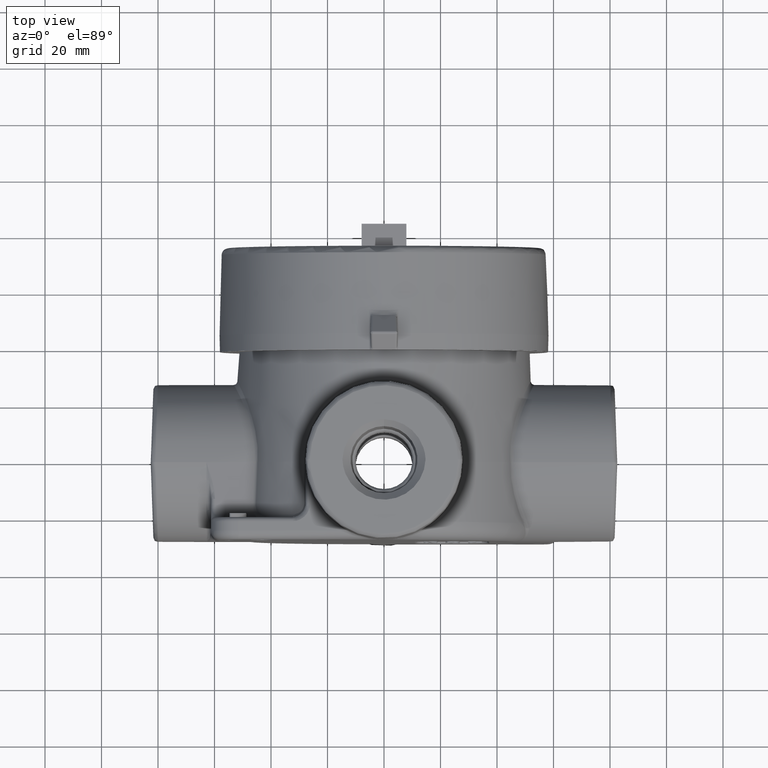
[diagram: clean part render]
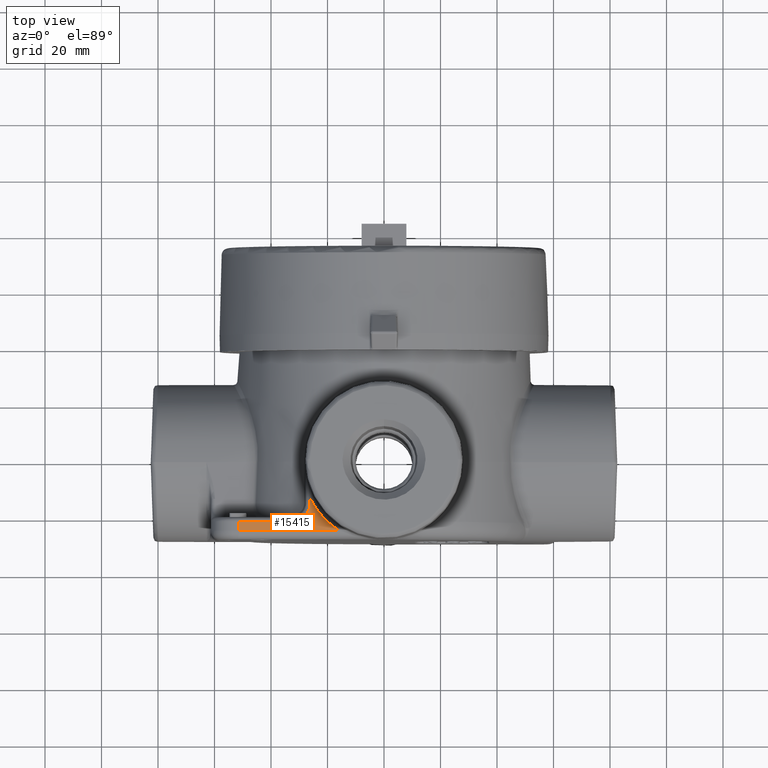
[diagram: same view with one face highlighted and labeled with its STEP entity id]
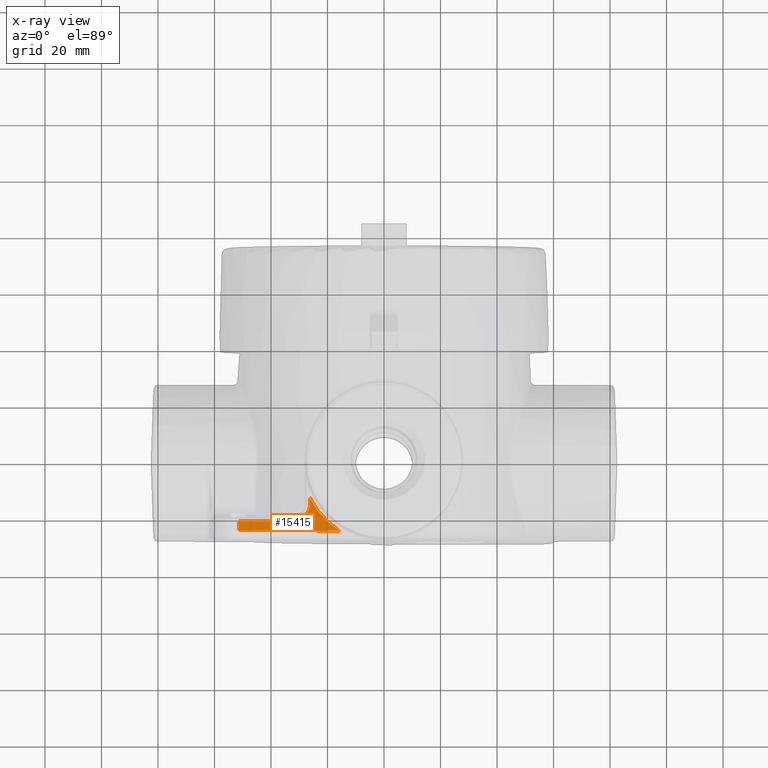
[diagram: x-ray of the same camera — body ghosted, the highlighted face saturated]
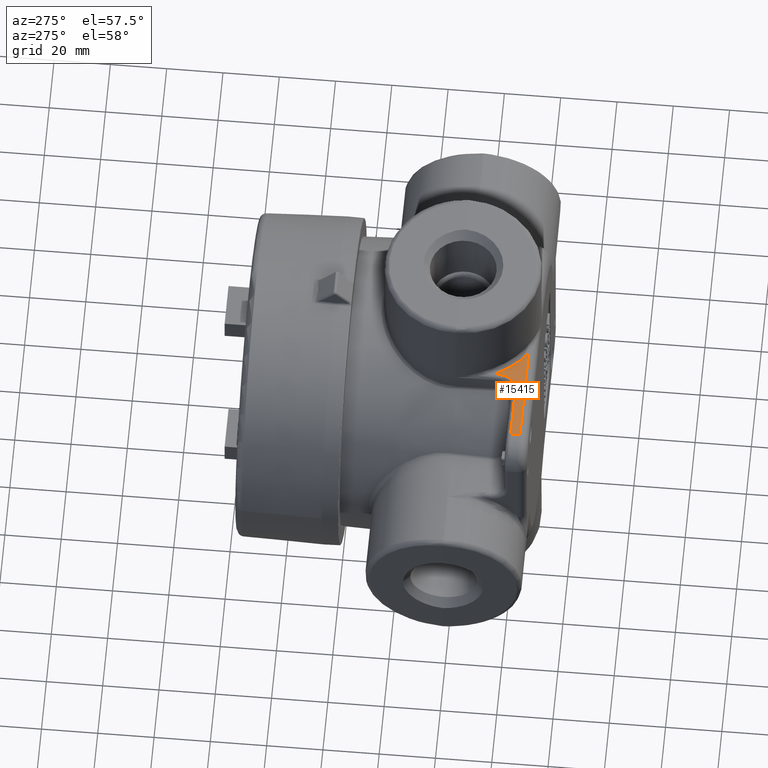
[diagram: same view with one face highlighted and labeled with its STEP entity id]
A machine part, top view. The second image highlights one B-rep face of the part: STEP entity #15415.
The next image is the same camera in x-ray: the body ghosted, the highlighted face saturated — about 0% of this face is hidden behind the body in this view.
A second angle (auxiliary view) of the same face is appended — the face is thin or edge-on in the first view.
In plain terms, the highlighted planar face has unit normal (0.0523, 0, 0.9986).
Its self-contained STEP definition (entity closure, byte-faithful):
#255=PLANE('',#16497);
#874=LINE('',#27946,#2193);
#876=LINE('',#27954,#2195);
#877=LINE('',#27958,#2196);
#878=LINE('',#27959,#2197);
#2193=VECTOR('',#18022,0.393700787401575);
#2195=VECTOR('',#18030,0.393700787401575);
#2196=VECTOR('',#18033,0.393700787401575);
#2197=VECTOR('',#18034,0.393700787401575);
#3481=FACE_OUTER_BOUND('',#4418,.T.);
#4418=EDGE_LOOP('',(#11060,#11061,#11062,#11063,#11064,#11065));
#5902=ELLIPSE('',#16493,1.1555836872816,1.154);
#5904=ELLIPSE('',#16498,0.247839655634485,0.2475);
#6724=VERTEX_POINT('',#27818);
#6727=VERTEX_POINT('',#27866);
#6731=VERTEX_POINT('',#27945);
#6734=VERTEX_POINT('',#27953);
#6735=VERTEX_POINT('',#27955);
#6736=VERTEX_POINT('',#27957);
#8375=EDGE_CURVE('',#6724,#6727,#5902,.T.);
#8379=EDGE_CURVE('',#6727,#6731,#874,.T.);
#8383=EDGE_CURVE('',#6734,#6724,#876,.T.);
#8384=EDGE_CURVE('',#6735,#6734,#5904,.T.);
#8385=EDGE_CURVE('',#6736,#6735,#877,.T.);
#8386=EDGE_CURVE('',#6731,#6736,#878,.T.);
#11060=ORIENTED_EDGE('',*,*,#8375,.F.);
#11061=ORIENTED_EDGE('',*,*,#8383,.F.);
#11062=ORIENTED_EDGE('',*,*,#8384,.F.);
#11063=ORIENTED_EDGE('',*,*,#8385,.F.);
#11064=ORIENTED_EDGE('',*,*,#8386,.F.);
#11065=ORIENTED_EDGE('',*,*,#8379,.F.);
#15415=ADVANCED_FACE('',(#3481),#255,.T.);
#16493=AXIS2_PLACEMENT_3D('',#27870,#18018,#18019);
#16497=AXIS2_PLACEMENT_3D('',#27952,#18028,#18029);
#16498=AXIS2_PLACEMENT_3D('',#27956,#18031,#18032);
#18018=DIRECTION('center_axis',(0.0523359562429437,0.,0.998629534754574));
#18019=DIRECTION('ref_axis',(-0.998629534754574,0.,0.0523359562429437));
#18022=DIRECTION('',(-0.998629534754574,0.,0.0523359562429437));
#18028=DIRECTION('center_axis',(0.0523359562429437,0.,0.998629534754574));
#18029=DIRECTION('ref_axis',(0.998629534754574,0.,-0.0523359562429437));
#18030=DIRECTION('',(-3.1951438522389E-16,1.,1.67450393785702E-17));
#18031=DIRECTION('center_axis',(0.0523359562429437,0.,0.998629534754574));
#18032=DIRECTION('ref_axis',(0.998629534754574,-1.05817370799832E-15,-0.0523359562429437));
#18033=DIRECTION('',(0.998629534754574,-1.81963491939547E-30,-0.0523359562429437));
#18034=DIRECTION('',(0.,1.,0.));
#27818=CARTESIAN_POINT('',(-1.03085984262542,-2.93048879636347,2.08979028297583));
#27866=CARTESIAN_POINT('',(-0.629222931454812,-3.375,2.06874138438328));
#27870=CARTESIAN_POINT('Origin',(-0.003140157374577,-2.4056,2.03592977654637));
#27945=CARTESIAN_POINT('',(-2.02463569619011,-3.375,2.14187186856627));
#27946=CARTESIAN_POINT('',(-0.47651103379784,-3.375,2.06073809295698));
#27952=CARTESIAN_POINT('Origin',(-0.00121486485274071,-3.5,2.03582887624083));
#27953=CARTESIAN_POINT('',(-1.03085984262542,-3.,2.08979028297583));
#27954=CARTESIAN_POINT('',(-1.03085984262542,-2.9528,2.08979028297583));
#27955=CARTESIAN_POINT('',(-1.27835984262542,-3.2475,2.10276120834839));
#27956=CARTESIAN_POINT('Origin',(-1.27835984262542,-3.,2.10276120834839));
#27957=CARTESIAN_POINT('',(-2.02463569619011,-3.2475,2.14187186856627));
#27958=CARTESIAN_POINT('',(-0.576984646769867,-3.2475,2.06600369188939));
#27959=CARTESIAN_POINT('',(-2.02463569619011,-3.5,2.14187186856627));